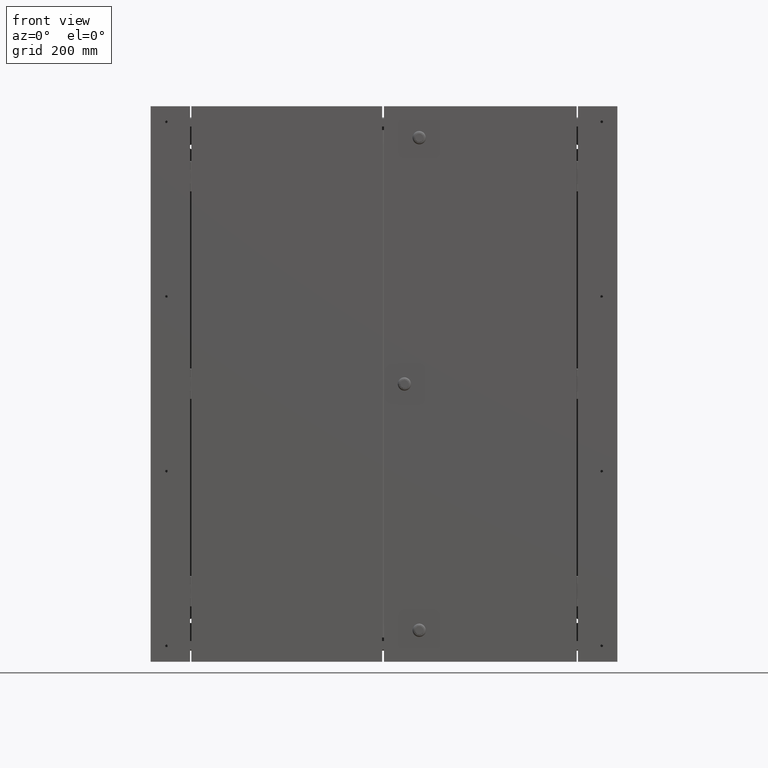
[diagram: clean part render]
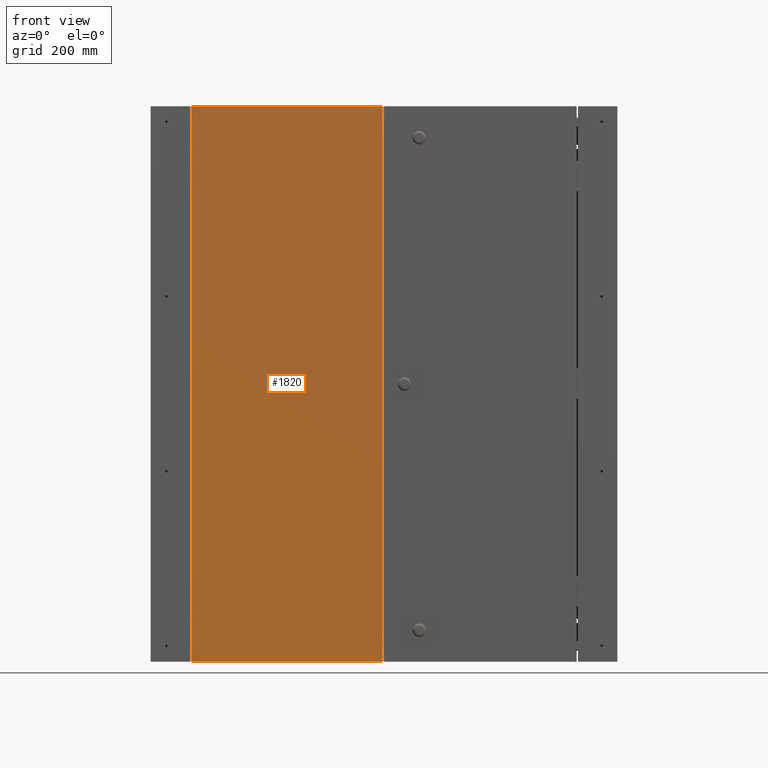
[diagram: same view with one face highlighted and labeled with its STEP entity id]
A machine part, front view. The second image highlights one B-rep face of the part: STEP entity #1820.
In plain terms, the highlighted planar face has unit normal (0, -1, 0).
Its self-contained STEP definition (entity closure, byte-faithful):
#1820 = ADVANCED_FACE( '', ( #3662 ), #3663, .T. );
#3662 = FACE_OUTER_BOUND( '', #21150, .T. );
#3663 = PLANE( '', #21151 );
#21150 = EDGE_LOOP( '', ( #36867, #36868, #36869, #36870, #36871, #36872, #36873, #36874 ) );
#21151 = AXIS2_PLACEMENT_3D( '', #36875, #36876, #36877 );
#36867 = ORIENTED_EDGE( '', *, *, #38954, .F. );
#36868 = ORIENTED_EDGE( '', *, *, #39822, .T. );
#36869 = ORIENTED_EDGE( '', *, *, #40248, .F. );
#36870 = ORIENTED_EDGE( '', *, *, #39798, .F. );
#36871 = ORIENTED_EDGE( '', *, *, #40254, .T. );
#36872 = ORIENTED_EDGE( '', *, *, #40429, .T. );
#36873 = ORIENTED_EDGE( '', *, *, #40430, .T. );
#36874 = ORIENTED_EDGE( '', *, *, #39036, .F. );
#36875 = CARTESIAN_POINT( '', ( 0.000000000000000, 0.000000000000000, 0.000000000000000 ) );
#36876 = DIRECTION( '', ( 0.000000000000000, -1.00000000000000, 0.000000000000000 ) );
#36877 = DIRECTION( '', ( 0.000000000000000, 0.000000000000000, -1.00000000000000 ) );
#38954 = EDGE_CURVE( '', #41010, #41012, #41013, .T. );
#39036 = EDGE_CURVE( '', #41012, #41158, #41159, .T. );
#39798 = EDGE_CURVE( '', #42426, #42428, #42429, .T. );
#39822 = EDGE_CURVE( '', #41010, #42461, #42462, .T. );
#40248 = EDGE_CURVE( '', #42428, #42461, #43071, .T. );
#40254 = EDGE_CURVE( '', #42426, #43077, #43079, .T. );
#40429 = EDGE_CURVE( '', #43077, #43311, #43312, .T. );
#40430 = EDGE_CURVE( '', #43311, #41158, #43313, .T. );
#41010 = VERTEX_POINT( '', #44020 );
#41012 = VERTEX_POINT( '', #44022 );
#41013 = LINE( '', #44023, #44024 );
#41158 = VERTEX_POINT( '', #44415 );
#41159 = LINE( '', #44416, #44417 );
#42426 = VERTEX_POINT( '', #47382 );
#42428 = VERTEX_POINT( '', #47385 );
#42429 = LINE( '', #47386, #47387 );
#42461 = VERTEX_POINT( '', #47465 );
#42462 = LINE( '', #47466, #47467 );
#43071 = LINE( '', #48664, #48665 );
#43077 = VERTEX_POINT( '', #48672 );
#43079 = LINE( '', #48675, #48676 );
#43311 = VERTEX_POINT( '', #49213 );
#43312 = LINE( '', #49214, #49215 );
#43313 = LINE( '', #49216, #49217 );
#44020 = CARTESIAN_POINT( '', ( 157.104387794597, 0.000000000000000, -434.975000000000 ) );
#44022 = CARTESIAN_POINT( '', ( 156.375100000000, 0.000000000000000, -434.975000000000 ) );
#44023 = CARTESIAN_POINT( '', ( 1.69150972390622E-012, 0.000000000000000, -434.975000000000 ) );
#44024 = VECTOR( '', #50443, 1000.00000000000 );
#44415 = CARTESIAN_POINT( '', ( 156.375100000000, 0.000000000000000, -476.250000000000 ) );
#44416 = CARTESIAN_POINT( '', ( 156.375100000000, 0.000000000000000, 0.000000000000000 ) );
#44417 = VECTOR( '', #50521, 1000.00000000000 );
#47382 = CARTESIAN_POINT( '', ( 156.375100000000, 0.000000000000000, 476.250000000000 ) );
#47385 = CARTESIAN_POINT( '', ( 156.375100000000, 0.000000000000000, 434.975000000000 ) );
#47386 = CARTESIAN_POINT( '', ( 156.375100000000, 0.000000000000000, 0.000000000000000 ) );
#47387 = VECTOR( '', #51298, 1000.00000000000 );
#47465 = CARTESIAN_POINT( '', ( 157.104387794597, 0.000000000000000, 434.975000000000 ) );
#47466 = CARTESIAN_POINT( '', ( 157.104387794597, 0.000000000000000, -434.975000000000 ) );
#47467 = VECTOR( '', #51319, 1000.00000000000 );
#48664 = CARTESIAN_POINT( '', ( 1.69150972390622E-012, 0.000000000000000, 434.975000000000 ) );
#48665 = VECTOR( '', #51749, 1000.00000000000 );
#48672 = CARTESIAN_POINT( '', ( -170.649900000000, 0.000000000000000, 476.250000000000 ) );
#48675 = CARTESIAN_POINT( '', ( 170.649900000000, 0.000000000000000, 476.250000000000 ) );
#48676 = VECTOR( '', #51755, 1000.00000000000 );
#49213 = CARTESIAN_POINT( '', ( -170.649900000000, 0.000000000000000, -476.250000000000 ) );
#49214 = CARTESIAN_POINT( '', ( -170.649900000000, 0.000000000000000, 476.250000000000 ) );
#49215 = VECTOR( '', #51926, 1000.00000000000 );
#49216 = CARTESIAN_POINT( '', ( -170.649900000000, 0.000000000000000, -476.250000000000 ) );
#49217 = VECTOR( '', #51927, 1000.00000000000 );
#50443 = DIRECTION( '', ( -1.00000000000000, 0.000000000000000, -3.88875159240465E-015 ) );
#50521 = DIRECTION( '', ( 0.000000000000000, 0.000000000000000, -1.00000000000000 ) );
#51298 = DIRECTION( '', ( 0.000000000000000, 0.000000000000000, -1.00000000000000 ) );
#51319 = DIRECTION( '', ( 0.000000000000000, 0.000000000000000, 1.00000000000000 ) );
#51749 = DIRECTION( '', ( 1.00000000000000, 0.000000000000000, -3.88875159240465E-015 ) );
#51755 = DIRECTION( '', ( -1.00000000000000, 0.000000000000000, 0.000000000000000 ) );
#51926 = DIRECTION( '', ( 0.000000000000000, 0.000000000000000, -1.00000000000000 ) );
#51927 = DIRECTION( '', ( 1.00000000000000, 0.000000000000000, 0.000000000000000 ) );